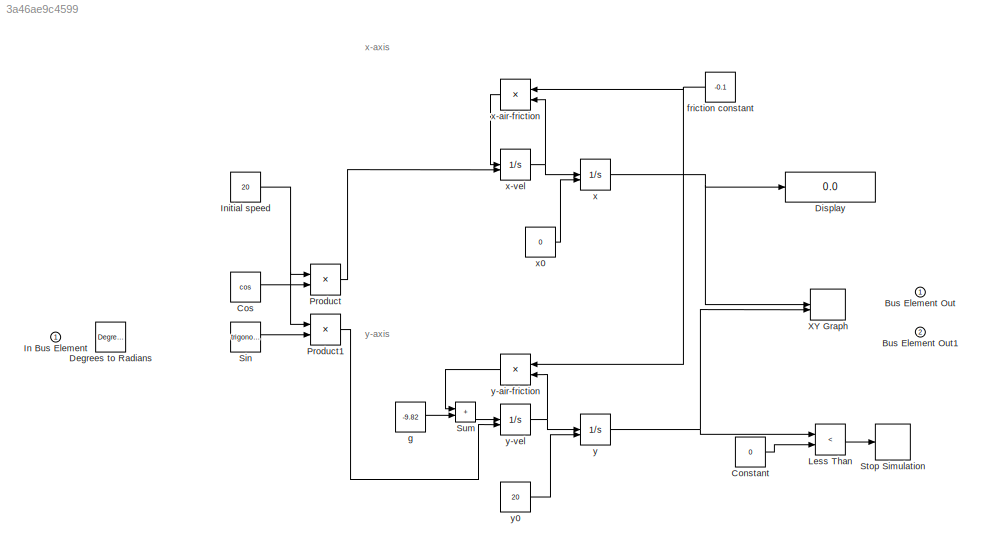
MODEL slx_3a46ae9c4599
KIND model
CONFIG AbsTol = auto
CONFIG EnableMultiTasking = off
CONFIG FixedStep = auto
CONFIG MaxStep = auto
CONFIG MinStep = auto
CONFIG RelTol = 1e-3
CONFIG SampleTimeConstraint = Unconstrained
CONFIG SolverName = VariableStepAuto
CONFIG StartTime = 0.0
CONFIG StopTime = 10.0
BLOCK [Outport] Bus Element Out
BLOCK [Outport] Bus Element Out1
  Port = 2
BLOCK [Constant] Constant
  Value = 0
BLOCK [Trigonometry] Cos
  Operator = cos
BLOCK [Reference] Degrees to Radians  REF=simulink_extras/Transformations/Degrees to
Radians
  SourceBlock = simulink_extras/Transformations/Degrees to\nRadians
  SourceType = DegreesToRadians
BLOCK [Display] Display
  Decimation = 1
BLOCK [Inport] In Bus Element
BLOCK [Constant] Initial speed
  Value = 20
BLOCK [RelationalOperator] Less Than
  InputSameDT = off
  Operator = <
  OutDataTypeStr = boolean
  RndMeth = Simplest
BLOCK [Product] Product
BLOCK [Product] Product1
BLOCK [Trigonometry] Sin
BLOCK [Stop] Stop Simulation
BLOCK [Sum] Sum
  IconShape = rectangular
BLOCK [Record] XY Graph
  CompatibilityTag = XY
  FileSettingsInternal = {"entries":[{"content":{"excelSettings":{"content":{},"type":"Streamout.ExcelSettings"}},"type":"Streamout.FileSettingStorage","uuid":"2845c4dd-848a-444c-838c-7536dcd4ca89"}],"packageUris":["http://schema.mathworks.com/mf0/streamout_blocks/R2020a"],"version":"1.0"}
  Layout = [1 1]
  SignalsInternal = {"entries":[{"content":{"signals":[{"content":{"blockPath":["Barrel/XY Graph"],"dimensions":[1],"domain":"Barrel/XY Graph","lineColor":"#77ac30","port":1,"signalID":105,"signalName":"x"},"type":"RecordBlkView.Signal","uuid":"9c50d103-1327-4046-ba79-150a0c04404f"},{"content":{"blockPath":["Barrel/XY Graph"],"dimensions":[1],"domain":"Barrel/XY Graph","lineColor":"#4dbeee","port":2,"signalID":108,"s...<+269ch>
  VisualizationBindings = {"xyplotplugin":{"info":[{"series":[],"subplotID":1}]}}
BLOCK [Constant] friction constant
  NameLocation = top
  Value = -0.1
BLOCK [Constant] g
  Value = -9.82
BLOCK [Integrator] x
  InitialCondition = 100
  InitialConditionSource = external
BLOCK [Product] x-air-friction
  NameLocation = top
BLOCK [Integrator] x-vel
  InitialCondition = 10
  InitialConditionSource = external
BLOCK [Constant] x0
  Value = 0
BLOCK [Integrator] y
  InitialCondition = 100
  InitialConditionSource = external
BLOCK [Product] y-air-friction
  NameLocation = top
BLOCK [Integrator] y-vel
  InitialCondition = 10
  InitialConditionSource = external
BLOCK [Constant] y0
  Value = 20
ANNOTATION (root): x-axis
ANNOTATION (root): y-axis
LINE Constant:1 -> Less Than:2
LINE Cos:1 -> Product:2
NET Initial speed:1 -> Product1:1, Product:1
LINE Less Than:1 -> Stop Simulation:1
LINE Product1:1 -> y-vel:2
LINE Product:1 -> x-vel:2
LINE Sin:1 -> Product1:2
LINE Sum:1 -> y-vel:1
NET friction constant:1 -> x-air-friction:1, y-air-friction:1
LINE g:1 -> Sum:2
LINE x-air-friction:1 -> x-vel:1
NET x-vel:1 -> x-air-friction:2, x:1
LINE x0:1 -> x:2
NET x:1 -> Display:1, XY Graph:1
LINE y-air-friction:1 -> Sum:1
NET y-vel:1 -> y-air-friction:2, y:1
LINE y0:1 -> y:2
NET y:1 -> Less Than:1, XY Graph:2
note: NET lines group one-source signal fan-out (src -> all destinations, sorted); 1:1 wires keep LINE
